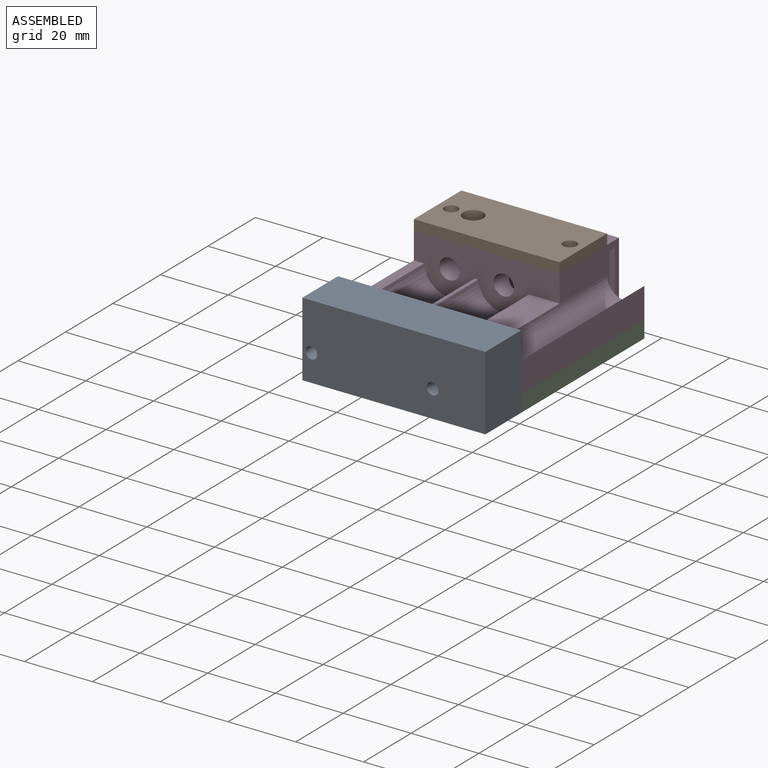
[diagram: assembled view]
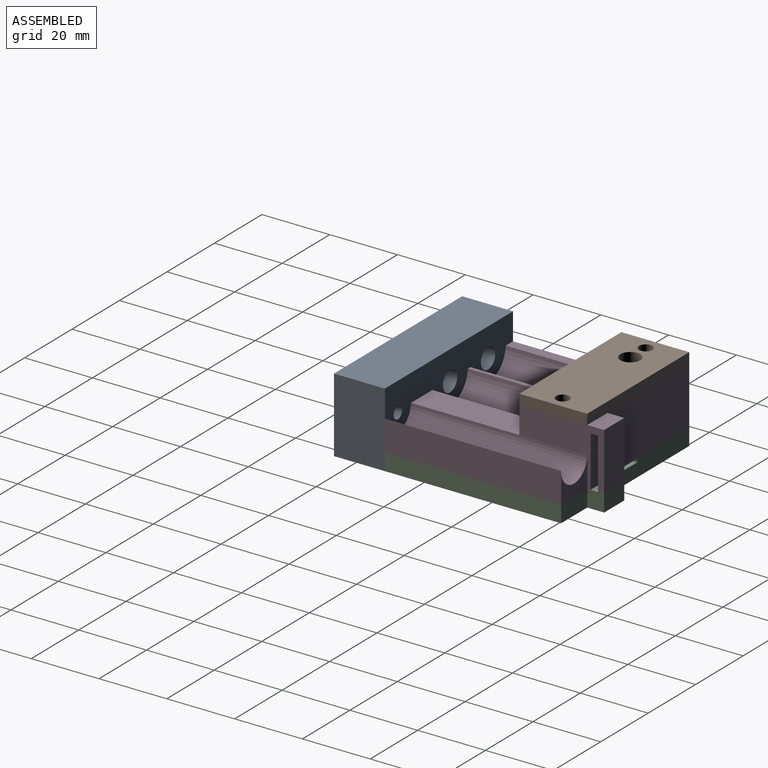
[diagram: assembled view, second angle]
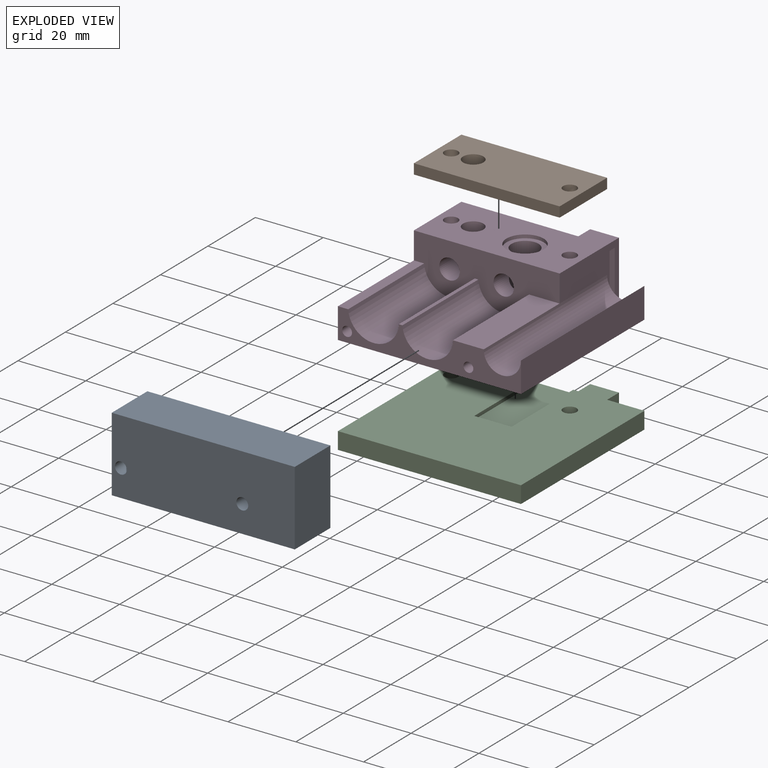
[diagram: exploded view]
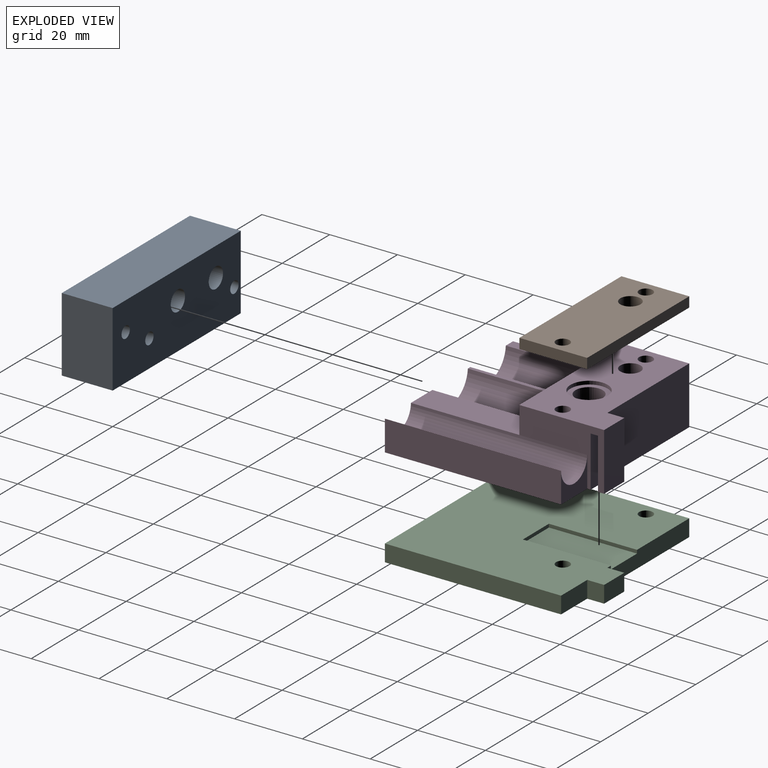
[diagram: exploded view, second angle]
ASSEMBLY  parts=4 mates=3
PART A: 20 faces, bbox 54x15x22 mm
  f0: cone r=0mm half-angle=59deg, axis (0,1,0), area 28.4mm2, adj f1,f2,f14
  f1: cylinder r=3mm len=10mm, axis (0,1,0), area 114.8mm2, adj f0,f9,f14
  f2: cylinder r=3mm len=4.7mm, axis (0,1,0), area 4.3mm2, adj f0,f14
  f3: cone r=0mm half-angle=59deg, axis (0,1,0), area 30.7mm2, adj f4,f5,f14
  f4: cylinder r=3mm len=10mm, axis (0,1,0), area 151mm2, adj f3,f5,f9,f12,f14
  f5: cylinder r=3mm len=2.35mm, axis (0,1,0), area 2.1mm2, adj f3,f4,f14
  f6: cylinder r=1.75mm len=5.23mm, axis (0,1,0), area 52.6mm2, adj f9,f13,f14
  f7: plane 54x22mm, normal (0,-1,0), area 1168.8mm2, adj f8,f10,f11,f17,f18,f19
  f8: plane 22x15mm, normal (1,0,0), area 330mm2, adj f7,f9,f11,f19
  f9: plane 54x22mm, normal (0,1,0), area 1102.6mm2, adj f1,f4,f6,f8,f10,f11,f17,f18
  f10: plane 22x15mm, normal (-1,0,0), area 330mm2, adj f7,f9,f11,f19
  f11: plane 54x15mm, normal (0,0,1), area 810mm2, adj f7,f8,f9,f10
  f12: plane 2.26x0.22mm, normal (1,0,0), area 0.3mm2, adj f4,f14
  f13: cone r=0mm half-angle=59deg, axis (-1,0,0), area 33mm2, adj f6,f14
  f14: cylinder r=3mm len=40mm, axis (-1,0,0), area 632.9mm2, adj f0,f1,f2,f3,f4,f5,f6,f12
  f15: cylinder r=1.75mm len=1.96mm, axis (0,1,0), area 0.3mm2, adj f14,f16
  f16: cone r=0mm half-angle=59deg, axis (0,1,0), area 5.5mm2, adj f14,f15
  f17: cylinder r=1.75mm len=15mm, axis (0,1,0), area 164.9mm2, adj f7,f9
  f18: cylinder r=1.75mm len=15mm, axis (0,1,0), area 164.9mm2, adj f7,f9
  f19: plane 54x15mm, normal (0,0,-1), area 810mm2, adj f7,f8,f9,f10
PART B: 9 faces, bbox 43x20x3 mm
  f0: plane 43x3mm, normal (0,-1,0), area 129mm2, adj f1,f3,f4,f5
  f1: plane 20x3mm, normal (1,0,0), area 60mm2, adj f0,f2,f4,f5
  f2: plane 43x3mm, normal (0,1,0), area 129mm2, adj f1,f3,f4,f5
  f3: plane 20x3mm, normal (-1,0,0), area 60mm2, adj f0,f2,f4,f5
  f4: plane 43x20mm, normal (0,0,1), area 806.6mm2, adj f0,f1,f2,f3,f6,f7,f8
  f5: plane 43x20mm, normal (0,0,-1), area 806.6mm2, adj f0,f1,f2,f3,f6,f7,f8
  f6: cylinder r=2mm len=4mm, axis (0,0,1), area 37.7mm2, adj f4,f5
  f7: cylinder r=2mm len=4mm, axis (0,0,1), area 37.7mm2, adj f4,f5
  f8: cylinder r=3mm len=6mm, axis (0,0,1), area 56.5mm2, adj f4,f5
PART C: 16 faces, bbox 54x57x5 mm
  f0: plane 26x11mm, normal (0,0,-1), area 286mm2, adj f2,f10,f11,f13
  f1: plane 8.5x5mm, normal (0,-1,0), area 42.5mm2, adj f6,f7,f12,f14
  f2: plane 26x1mm, normal (-1,0,0), area 26mm2, adj f0,f7,f11,f13
  f3: plane 52x5mm, normal (1,0,0), area 260mm2, adj f4,f6,f7,f15
  f4: plane 54x5mm, normal (0,1,0), area 270mm2, adj f3,f5,f6,f7
  f5: plane 52x5mm, normal (-1,0,0), area 260mm2, adj f4,f6,f7,f13
  f6: plane 57x54mm, normal (0,0,1), area 2825.4mm2, adj f1,f3,f4,f5,f8,f9,f12,f13
  f7: plane 57x54mm, normal (0,0,-1), area 2539.4mm2, adj f1,f2,f3,f4,f5,f8,f9,f10
  f8: cylinder r=2mm len=5mm, axis (0,0,1), area 62.8mm2, adj f6,f7
  f9: cylinder r=2mm len=5mm, axis (0,0,1), area 62.8mm2, adj f6,f7
  f10: plane 26x1mm, normal (1,0,0), area 26mm2, adj f0,f7,f11,f13
  f11: plane 11x1mm, normal (0,-1,0), area 11mm2, adj f0,f2,f7,f10
  f12: plane 5x5mm, normal (-1,0,0), area 25mm2, adj f1,f6,f7,f13
  f13: plane 34.5x5mm, normal (0,-1,0), area 161.5mm2, adj f0,f2,f5,f6,f7,f10,f12
  f14: plane 5x5mm, normal (1,0,0), area 25mm2, adj f1,f6,f7,f15
  f15: plane 11x5mm, normal (0,-1,0), area 55mm2, adj f3,f6,f7,f14
PART D: 39 faces, bbox 54x57x17 mm
  f0: plane 52x17mm, normal (-1,0,0), area 628mm2, adj f1,f3,f5,f10,f21,f34
  f1: plane 57x54mm, normal (0,0,-1), area 2717.1mm2, adj f0,f2,f3,f22,f23,f24,f25,f26
  f2: plane 11x9mm, normal (0,1,0), area 51.5mm2, adj f1,f23,f26,f27
  f3: plane 54x9mm, normal (0,-1,0), area 263.5mm2, adj f0,f1,f17,f18,f19,f20,f21,f26
  f4: plane 11x11mm, normal (0,0,-1), area 44.8mm2, adj f6,f22
  f5: plane 43x15mm, normal (0,-1,0), area 449.2mm2, adj f0,f7,f10,f16,f17,f18,f19,f20
  f6: cylinder r=4mm len=15mm, axis (0,0,1), area 347.3mm2, adj f4,f8,f14,f15,f16
  f7: cylinder r=3mm len=10mm, axis (0,-1,0), area 154.9mm2, adj f5,f11,f12,f13
  f8: plane 11x11mm, normal (0,0,1), area 44.8mm2, adj f6,f9
  f9: cylinder r=5.5mm len=11mm, axis (0,0,-1), area 34.6mm2, adj f8,f10
  f10: plane 43x25mm, normal (0,0,1), area 754.1mm2, adj f0,f5,f9,f12,f23,f24,f25,f28
  f11: cone r=0mm half-angle=59deg, axis (0,0,1), area 30.7mm2, adj f7,f12,f13
  f12: cylinder r=3mm len=10mm, axis (0,0,1), area 150.6mm2, adj f7,f10,f11,f13
  f13: cylinder r=3mm len=2.5mm, axis (0,0,1), area 3.7mm2, adj f7,f11,f12
  f14: cone r=0mm half-angle=59deg, axis (0,-1,0), area 0.5mm2, adj f6,f16
  f15: cone r=0mm half-angle=59deg, axis (0,-1,0), area 0.5mm2, adj f6,f16
  f16: cylinder r=3mm len=6mm, axis (0,-1,0), area 105mm2, adj f5,f6,f14,f15
  f17: plane 32x9.02mm, normal (0,0,1), area 288.5mm2, adj f3,f5,f18,f27
  f18: cylinder r=7.5mm len=32mm, axis (0,1,0), area 722mm2, adj f3,f5,f17,f19
  f19: plane 32x1.03mm, normal (0,0,1), area 33.1mm2, adj f3,f5,f18,f20
  f20: cylinder r=7.5mm len=32mm, axis (0,1,0), area 722mm2, adj f3,f5,f19,f21
  f21: plane 32x3.02mm, normal (0,0,1), area 96.5mm2, adj f0,f3,f5,f20
  f22: cylinder r=5.5mm len=11mm, axis (0,0,1), area 34.6mm2, adj f1,f4
  f23: plane 25x17mm, normal (1,0,0), area 212mm2, adj f1,f2,f5,f10,f27,f28,f29,f30
  f24: cylinder r=2mm len=17mm, axis (0,0,1), area 213.6mm2, adj f1,f10
  f25: cylinder r=2mm len=17mm, axis (0,0,1), area 213.6mm2, adj f1,f10
  f26: plane 52x9mm, normal (1,0,0), area 468mm2, adj f1,f2,f3,f27
  f27: cylinder r=5.5mm len=52mm, axis (0,-1,0), area 898.5mm2, adj f2,f3,f17,f23,f26
  f28: plane 17x8.5mm, normal (0,1,0), area 144.5mm2, adj f1,f10,f23,f33
  f29: plane 15x6mm, normal (0,1,0), area 90mm2, adj f1,f23,f31,f32
  f30: plane 15x6mm, normal (0,-1,0), area 90mm2, adj f1,f23,f31,f32
  f31: plane 6x2.2mm, normal (0,0,-1), area 13.2mm2, adj f23,f29,f30,f32
  f32: plane 15x2.2mm, normal (1,0,0), area 33mm2, adj f1,f29,f30,f31
  f33: plane 17x5mm, normal (-1,0,0), area 85mm2, adj f1,f10,f28,f34
  f34: plane 34.5x17mm, normal (0,1,0), area 586.5mm2, adj f0,f1,f10,f33
  f35: cone r=0mm half-angle=59deg, axis (0,-1,0), area 7.7mm2, adj f36
  f36: cylinder r=1.45mm len=10mm, axis (0,-1,0), area 91.1mm2, adj f3,f35
  f37: cone r=0mm half-angle=59deg, axis (0,-1,0), area 7.7mm2, adj f38
  f38: cylinder r=1.45mm len=10mm, axis (0,-1,0), area 91.1mm2, adj f3,f37
PLACE A t=(1.31,-27.37,3.31)mm
PLACE B t=(-4.18,22.13,20.31)mm
PLACE C rot(axis=(1,0,0),180deg) t=(1.31,8.63,3.31)mm
PLACE D t=(-7.19,22.13,5.31)mm
MATE parallel A.f17 <-> D.f35  axis (0,1,0) through (-22.99,-19.87,6.31)mm
MATE parallel C.f9 <-> D.f24  axis (0,0,1) through (13.31,22.13,3.31)mm
MATE parallel B.f8 <-> D.f11  axis (0,0,-1) through (-15.19,22.13,20.31)mm
